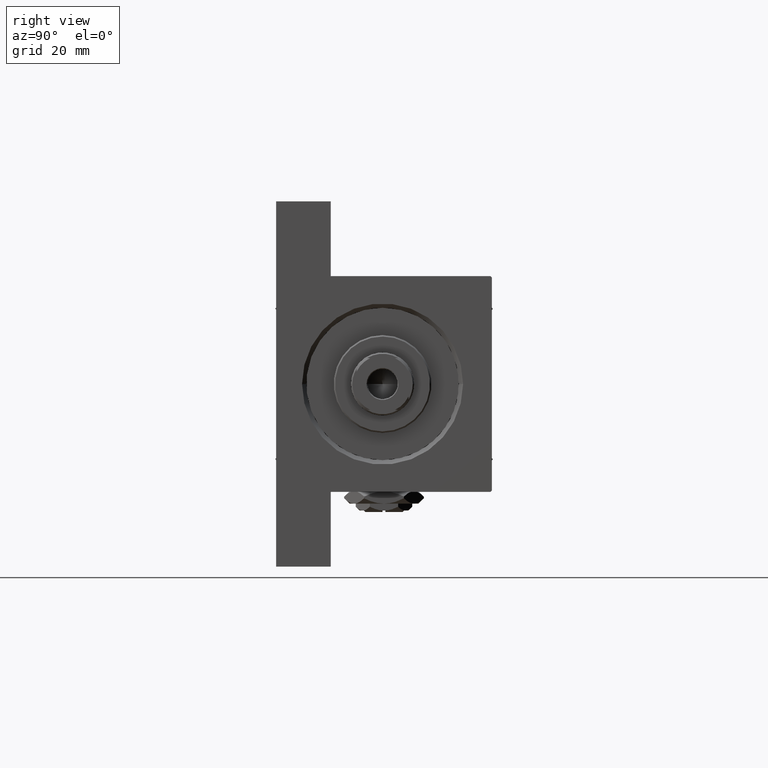
[diagram: clean part render]
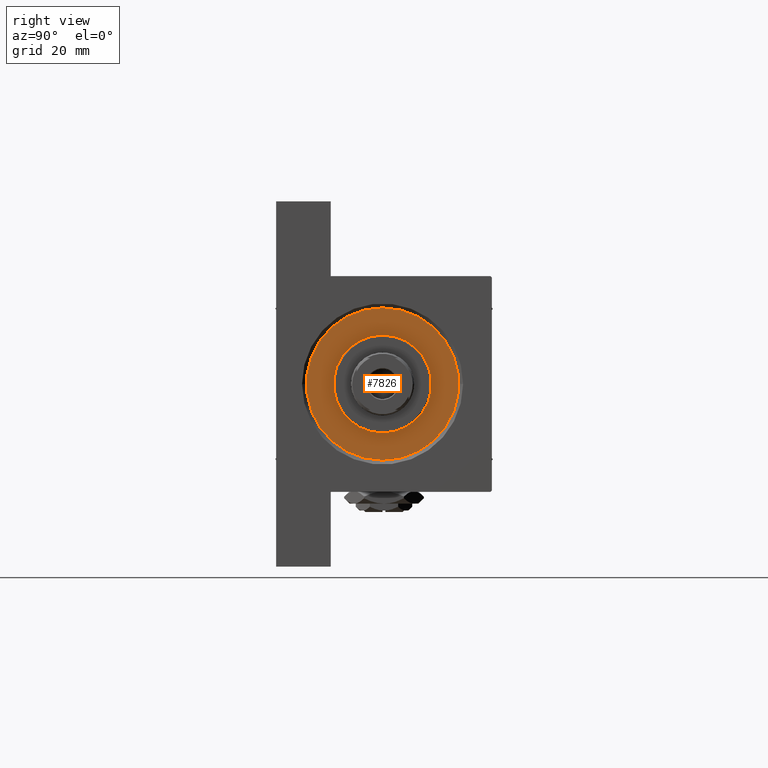
[diagram: same view with one face highlighted and labeled with its STEP entity id]
A machine part, right view. The second image highlights one B-rep face of the part: STEP entity #7826.
In plain terms, the highlighted planar face has unit normal (1, 0, 0).
Its self-contained STEP definition (entity closure, byte-faithful):
#37 = ORIENTED_EDGE ( 'NONE', *, *, #358, .F. ) ;
#358 = EDGE_CURVE ( 'NONE', #37247, #46769, #7886, .T. ) ;
#1590 = FACE_BOUND ( 'NONE', #45196, .T. ) ;
#2561 = CIRCLE ( 'NONE', #17668, 26.50000000000000355 ) ;
#4273 = EDGE_CURVE ( 'NONE', #40095, #5638, #14378, .T. ) ;
#5165 = DIRECTION ( 'NONE',  ( 0.000000000000000000, 0.000000000000000000, 1.000000000000000000 ) ) ;
#5169 = DIRECTION ( 'NONE',  ( 1.000000000000000000, 0.000000000000000000, 0.000000000000000000 ) ) ;
#5638 = VERTEX_POINT ( 'NONE', #9354 ) ;
#7826 = ADVANCED_FACE ( 'NONE', ( #1590, #16786 ), #42693, .T. ) ;
#7886 = CIRCLE ( 'NONE', #32554, 17.00000000000000000 ) ;
#9354 = CARTESIAN_POINT ( 'NONE',  ( 26.50000000000000355, 3.245314017740486554E-15, 28.69999999999999929 ) ) ;
#9563 = DIRECTION ( 'NONE',  ( 1.000000000000000000, 0.000000000000000000, -0.000000000000000000 ) ) ;
#10069 = ORIENTED_EDGE ( 'NONE', *, *, #21327, .F. ) ;
#10392 = ORIENTED_EDGE ( 'NONE', *, *, #4273, .T. ) ;
#12135 = EDGE_LOOP ( 'NONE', ( #10392, #35802 ) ) ;
#14378 = CIRCLE ( 'NONE', #46985, 26.50000000000000355 ) ;
#16786 = FACE_OUTER_BOUND ( 'NONE', #12135, .T. ) ;
#17132 = CARTESIAN_POINT ( 'NONE',  ( 0.000000000000000000, 0.000000000000000000, 28.69999999999999929 ) ) ;
#17266 = AXIS2_PLACEMENT_3D ( 'NONE', #45590, #44850, #18702 ) ;
#17668 = AXIS2_PLACEMENT_3D ( 'NONE', #39289, #5165, #39049 ) ;
#18052 = CIRCLE ( 'NONE', #17266, 17.00000000000000000 ) ;
#18702 = DIRECTION ( 'NONE',  ( 1.000000000000000000, 0.000000000000000000, 0.000000000000000000 ) ) ;
#21084 = DIRECTION ( 'NONE',  ( 0.000000000000000000, 0.000000000000000000, 1.000000000000000000 ) ) ;
#21327 = EDGE_CURVE ( 'NONE', #46769, #37247, #18052, .T. ) ;
#24973 = CARTESIAN_POINT ( 'NONE',  ( 0.000000000000000000, 0.000000000000000000, 28.69999999999999929 ) ) ;
#25687 = AXIS2_PLACEMENT_3D ( 'NONE', #24973, #43909, #9563 ) ;
#29851 = CARTESIAN_POINT ( 'NONE',  ( -26.50000000000000355, 0.000000000000000000, 28.69999999999999929 ) ) ;
#31831 = DIRECTION ( 'NONE',  ( 1.000000000000000000, 0.000000000000000000, 0.000000000000000000 ) ) ;
#32554 = AXIS2_PLACEMENT_3D ( 'NONE', #17132, #39317, #31831 ) ;
#34995 = CARTESIAN_POINT ( 'NONE',  ( -17.00000000000000000, 0.000000000000000000, 28.69999999999999929 ) ) ;
#35802 = ORIENTED_EDGE ( 'NONE', *, *, #38164, .T. ) ;
#37247 = VERTEX_POINT ( 'NONE', #34995 ) ;
#38164 = EDGE_CURVE ( 'NONE', #5638, #40095, #2561, .T. ) ;
#39049 = DIRECTION ( 'NONE',  ( 1.000000000000000000, 0.000000000000000000, 0.000000000000000000 ) ) ;
#39289 = CARTESIAN_POINT ( 'NONE',  ( 0.000000000000000000, 0.000000000000000000, 28.69999999999999929 ) ) ;
#39317 = DIRECTION ( 'NONE',  ( 0.000000000000000000, 0.000000000000000000, 1.000000000000000000 ) ) ;
#40095 = VERTEX_POINT ( 'NONE', #29851 ) ;
#42693 = PLANE ( 'NONE',  #25687 ) ;
#43752 = CARTESIAN_POINT ( 'NONE',  ( 0.000000000000000000, 0.000000000000000000, 28.69999999999999929 ) ) ;
#43909 = DIRECTION ( 'NONE',  ( 0.000000000000000000, 0.000000000000000000, 1.000000000000000000 ) ) ;
#44850 = DIRECTION ( 'NONE',  ( 0.000000000000000000, 0.000000000000000000, 1.000000000000000000 ) ) ;
#45196 = EDGE_LOOP ( 'NONE', ( #37, #10069 ) ) ;
#45590 = CARTESIAN_POINT ( 'NONE',  ( 0.000000000000000000, 0.000000000000000000, 28.69999999999999929 ) ) ;
#46769 = VERTEX_POINT ( 'NONE', #47797 ) ;
#46985 = AXIS2_PLACEMENT_3D ( 'NONE', #43752, #21084, #5169 ) ;
#47797 = CARTESIAN_POINT ( 'NONE',  ( 17.00000000000000000, 2.081899558550500280E-15, 28.69999999999999929 ) ) ;